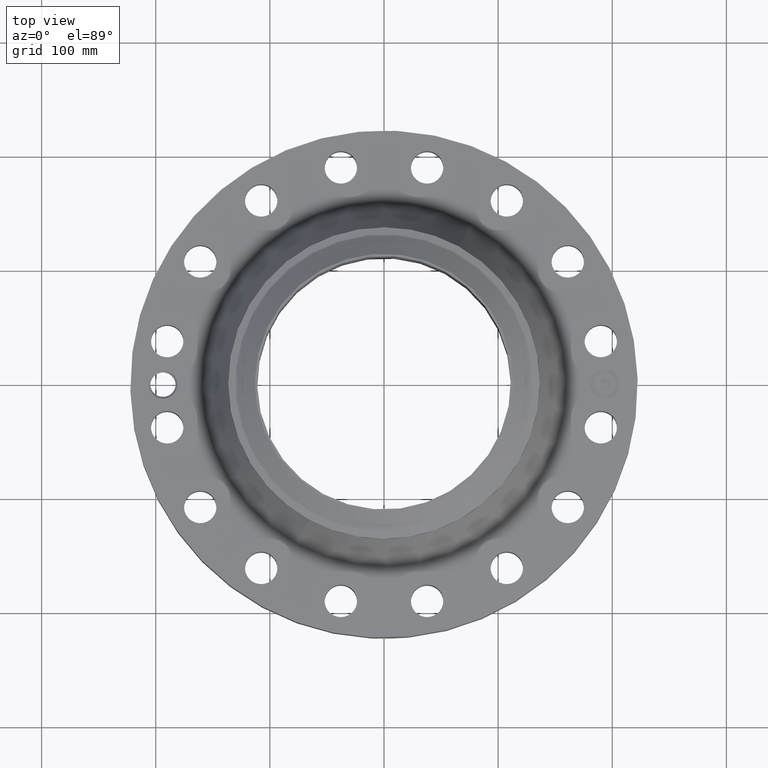
[diagram: clean part render]
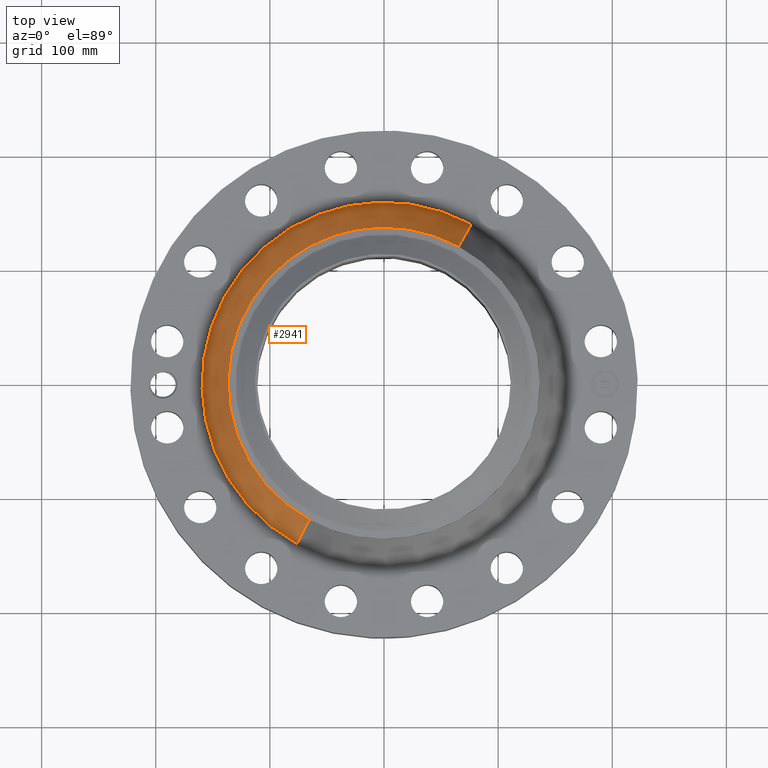
[diagram: same view with one face highlighted and labeled with its STEP entity id]
A machine part, top view. The second image highlights one B-rep face of the part: STEP entity #2941.
In plain terms, the highlighted conical surface has half-angle 25.665 deg.
Its self-contained STEP definition (entity closure, byte-faithful):
#2195=AXIS2_PLACEMENT_3D('Circle Axis2P3D',#2193,#2194,$) ;
#2914=AXIS2_PLACEMENT_3D('Cone Axis2P3D',#2911,#2912,#2913) ;
#2918=AXIS2_PLACEMENT_3D('Circle Axis2P3D',#2916,#2917,$) ;
#2190=CARTESIAN_POINT('Vertex',(2.57691227001,4.71700627018,4.13878537513)) ;
#2193=CARTESIAN_POINT('Axis2P3D Location',(0.,0.,4.13878537513)) ;
#2197=CARTESIAN_POINT('Vertex',(-2.57691227001,-4.71700627018,4.13878537513)) ;
#2911=CARTESIAN_POINT('Axis2P3D Location',(0.,0.,4.13878537513)) ;
#2916=CARTESIAN_POINT('Axis2P3D Location',(0.,0.,2.26102605857)) ;
#2920=CARTESIAN_POINT('Vertex',(-3.00950355542,-5.50885930664,2.26102605857)) ;
#2922=CARTESIAN_POINT('Vertex',(3.00950355542,5.50885930664,2.26102605857)) ;
#2925=CARTESIAN_POINT('Line Origine',(-2.79320791271,-5.11293278841,3.19990571685)) ;
#2930=CARTESIAN_POINT('Line Origine',(2.79320791271,5.11293278841,3.19990571685)) ;
#2194=DIRECTION('Axis2P3D Direction',(0.,0.,-0.0393700787402)) ;
#2912=DIRECTION('Axis2P3D Direction',(0.,0.,-0.0393700787402)) ;
#2913=DIRECTION('Axis2P3D XDirection',(0.0188750212049,0.0345504945626,0.)) ;
#2917=DIRECTION('Axis2P3D Direction',(0.,0.,-0.0393700787402)) ;
#2926=DIRECTION('Vector Direction',(-0.00817507705696,-0.0149643781768,-0.0354857520831)) ;
#2931=DIRECTION('Vector Direction',(0.00817507705696,0.0149643781768,-0.0354857520831)) ;
#2927=VECTOR('Line Direction',#2926,0.0393700787402) ;
#2932=VECTOR('Line Direction',#2931,0.0393700787402) ;
#2936=ORIENTED_EDGE('',*,*,#2924,.F.) ;
#2937=ORIENTED_EDGE('',*,*,#2929,.T.) ;
#2938=ORIENTED_EDGE('',*,*,#2199,.T.) ;
#2939=ORIENTED_EDGE('',*,*,#2934,.F.) ;
#2941=ADVANCED_FACE('PartBody',(#2940),#2915,.T.) ;
#2196=CIRCLE('generated circle',#2195,5.37500000002) ;
#2919=CIRCLE('generated circle',#2918,6.2773117264) ;
#2915=CONICAL_SURFACE('Cone',#2914,5.37500000002,0.447947197295) ;
#2199=EDGE_CURVE('',#2198,#2191,#2196,.T.) ;
#2924=EDGE_CURVE('',#2921,#2923,#2919,.T.) ;
#2929=EDGE_CURVE('',#2921,#2198,#2928,.F.) ;
#2934=EDGE_CURVE('',#2923,#2191,#2933,.F.) ;
#2935=EDGE_LOOP('',(#2936,#2937,#2938,#2939)) ;
#2940=FACE_OUTER_BOUND('',#2935,.T.) ;
#2928=LINE('Line',#2925,#2927) ;
#2933=LINE('Line',#2930,#2932) ;
#2191=VERTEX_POINT('',#2190) ;
#2198=VERTEX_POINT('',#2197) ;
#2921=VERTEX_POINT('',#2920) ;
#2923=VERTEX_POINT('',#2922) ;